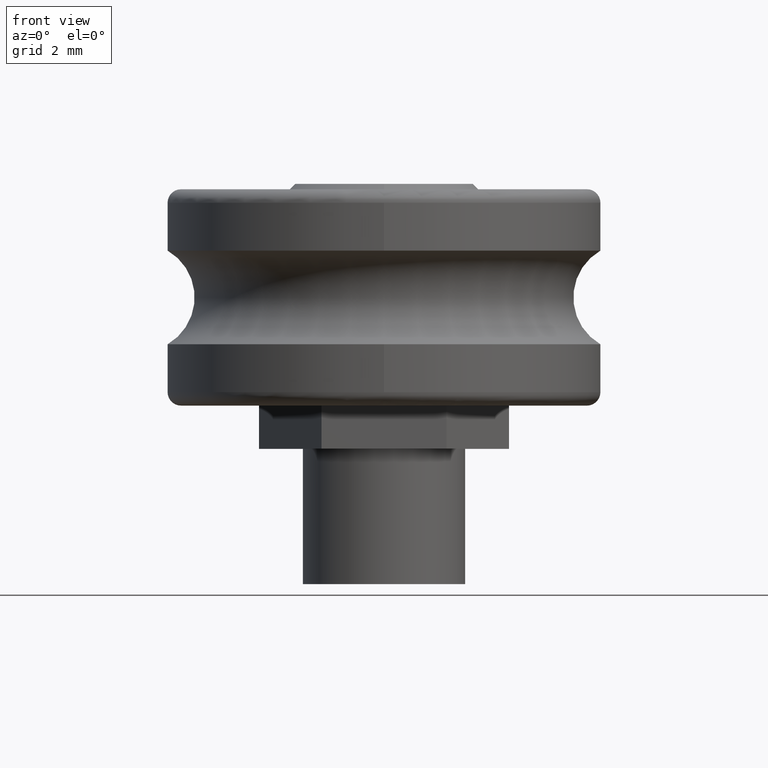
[diagram: clean part render]
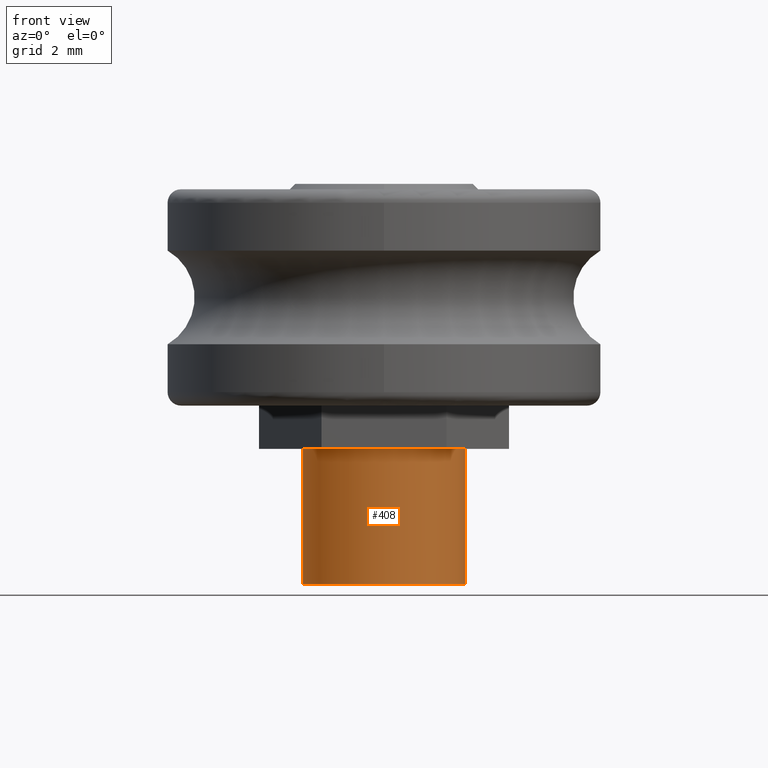
[diagram: same view with one face highlighted and labeled with its STEP entity id]
A machine part, front view. The second image highlights one B-rep face of the part: STEP entity #408.
In plain terms, the highlighted cylindrical surface (bore or boss wall) has radius 3 mm, axis along (0, 0, -1).
Its self-contained STEP definition (entity closure, byte-faithful):
#39=CYLINDRICAL_SURFACE('',#460,3.);
#48=FACE_OUTER_BOUND('',#75,.T.);
#75=EDGE_LOOP('',(#286,#287,#288,#289));
#109=LINE('',#659,#137);
#137=VECTOR('',#525,3.);
#165=CIRCLE('',#461,3.);
#166=CIRCLE('',#462,3.);
#192=VERTEX_POINT('',#656);
#193=VERTEX_POINT('',#658);
#229=EDGE_CURVE('',#192,#192,#165,.T.);
#230=EDGE_CURVE('',#192,#193,#109,.T.);
#231=EDGE_CURVE('',#193,#193,#166,.T.);
#286=ORIENTED_EDGE('',*,*,#229,.F.);
#287=ORIENTED_EDGE('',*,*,#230,.T.);
#288=ORIENTED_EDGE('',*,*,#231,.F.);
#289=ORIENTED_EDGE('',*,*,#230,.F.);
#408=ADVANCED_FACE('',(#48),#39,.T.);
#460=AXIS2_PLACEMENT_3D('',#655,#521,#522);
#461=AXIS2_PLACEMENT_3D('',#657,#523,#524);
#462=AXIS2_PLACEMENT_3D('',#660,#526,#527);
#521=DIRECTION('center_axis',(0.,0.,-1.));
#522=DIRECTION('ref_axis',(1.,0.,0.));
#523=DIRECTION('center_axis',(0.,0.,-1.));
#524=DIRECTION('ref_axis',(1.,0.,0.));
#525=DIRECTION('',(0.,0.,1.));
#526=DIRECTION('center_axis',(0.,0.,1.));
#527=DIRECTION('ref_axis',(1.,0.,0.));
#655=CARTESIAN_POINT('Origin',(-6.93889390390723E-17,-1.94289029309402E-15,
-5.6));
#656=CARTESIAN_POINT('',(-3.,-1.57549625334982E-15,-10.6));
#657=CARTESIAN_POINT('Origin',(-6.93889390390723E-17,-1.94289029309402E-15,
-10.6));
#658=CARTESIAN_POINT('',(-3.,-1.57549625334982E-15,-5.6));
#659=CARTESIAN_POINT('',(-3.,-1.57549625334982E-15,-5.6));
#660=CARTESIAN_POINT('Origin',(-6.93889390390723E-17,-1.94289029309402E-15,
-5.6));